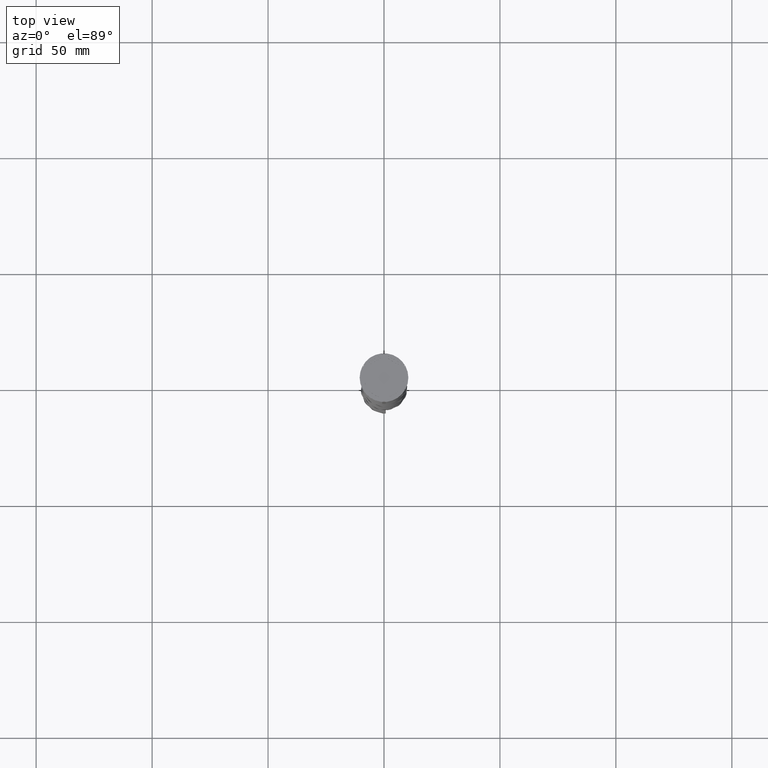
[diagram: clean part render]
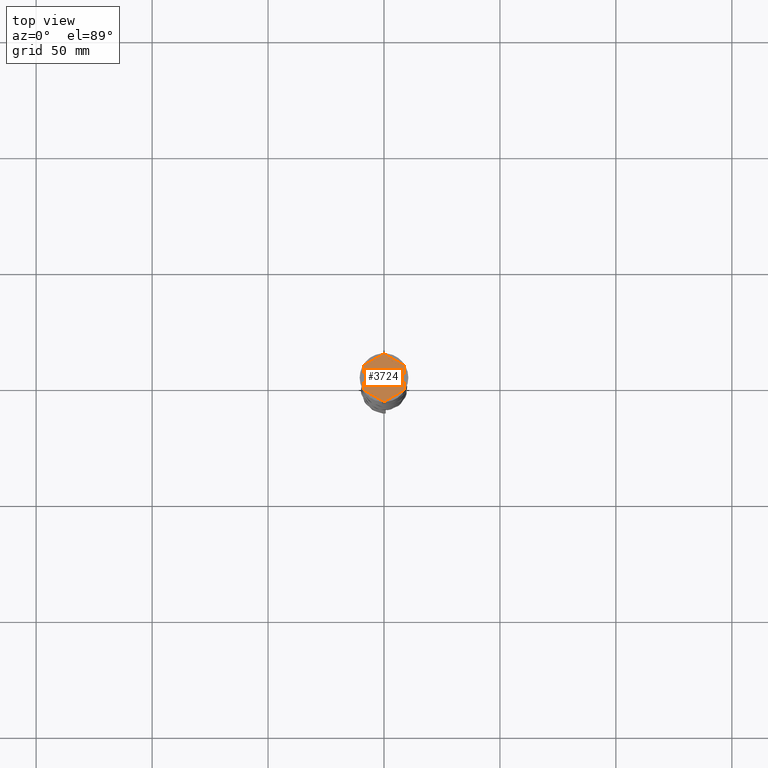
[diagram: same view with one face highlighted and labeled with its STEP entity id]
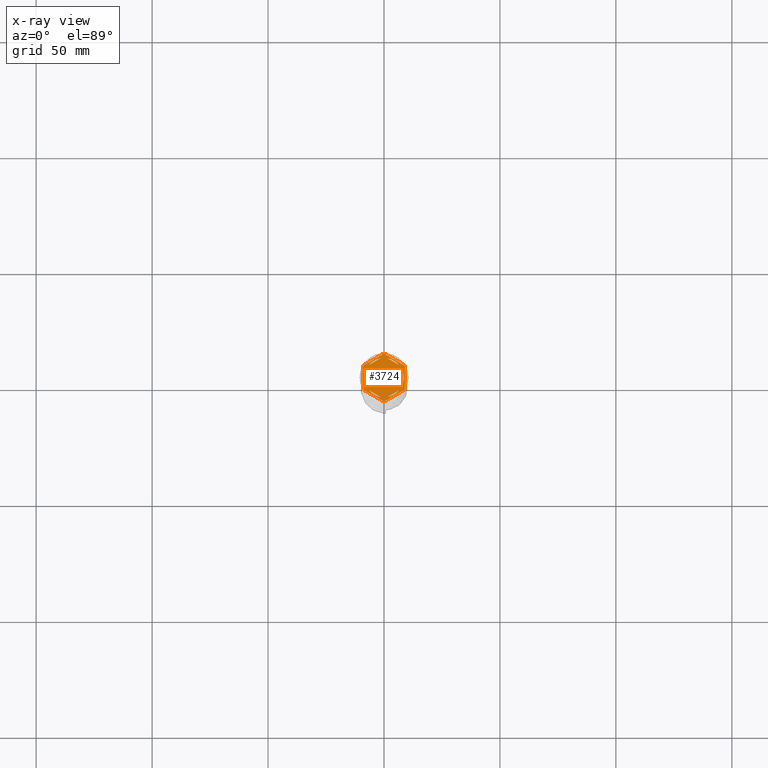
[diagram: x-ray of the same camera — body ghosted, the highlighted face saturated]
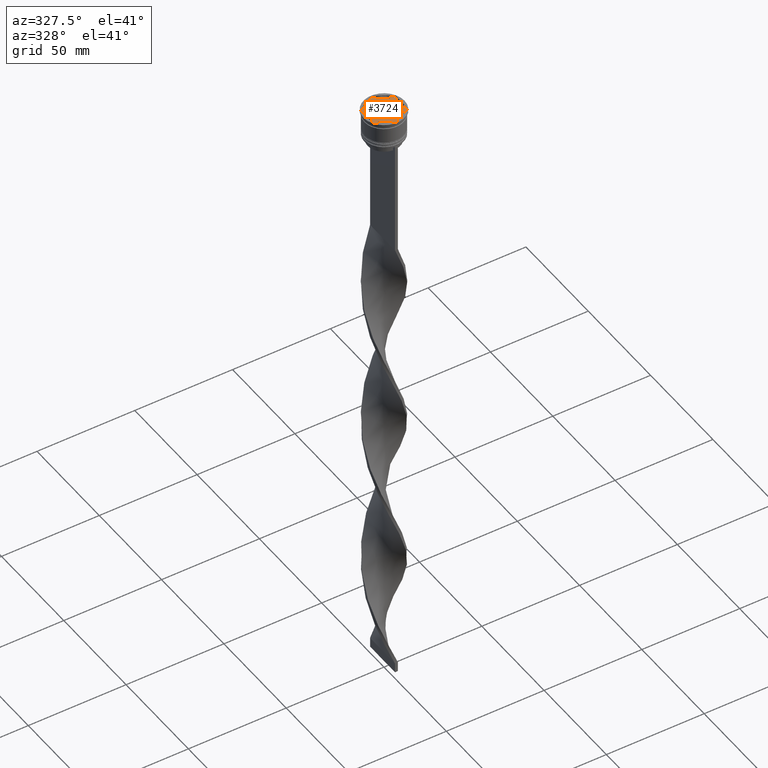
[diagram: same view with one face highlighted and labeled with its STEP entity id]
A machine part, top view. The second image highlights one B-rep face of the part: STEP entity #3724.
The next image is the same camera in x-ray: the body ghosted, the highlighted face saturated — about 0% of this face is hidden behind the body in this view.
A second angle (auxiliary view) of the same face is appended — the face is thin or edge-on in the first view.
In plain terms, the highlighted planar face has unit normal (0, 0, 1).
Its self-contained STEP definition (entity closure, byte-faithful):
#64 = DIRECTION ( 'NONE',  ( 0.000000000000000000, 1.000000000000000000, 0.000000000000000000 ) ) ;
#80 = EDGE_LOOP ( 'NONE', ( #1685, #1831 ) ) ;
#162 = VERTEX_POINT ( 'NONE', #2083 ) ;
#168 = CARTESIAN_POINT ( 'NONE',  ( 9.000000000000001776, 5.196152422706632912, -1.000000000000000000 ) ) ;
#185 = EDGE_CURVE ( 'NONE', #880, #2560, #531, .T. ) ;
#213 = DIRECTION ( 'NONE',  ( -0.000000000000000000, -0.000000000000000000, -1.000000000000000000 ) ) ;
#240 = CARTESIAN_POINT ( 'NONE',  ( 0.000000000000000000, 0.000000000000000000, -1.000000000000000000 ) ) ;
#246 = EDGE_CURVE ( 'NONE', #2197, #3687, #2754, .T. ) ;
#253 = CIRCLE ( 'NONE', #2899, 10.19999999999999574 ) ;
#262 = CARTESIAN_POINT ( 'NONE',  ( 0.000000000000000000, 0.000000000000000000, -1.000000000000000000 ) ) ;
#348 = LINE ( 'NONE', #3979, #1437 ) ;
#366 = CARTESIAN_POINT ( 'NONE',  ( 0.000000000000000000, 0.000000000000000000, -1.000000000000000000 ) ) ;
#390 = AXIS2_PLACEMENT_3D ( 'NONE', #3504, #3787, #3852 ) ;
#394 = DIRECTION ( 'NONE',  ( -0.000000000000000000, -0.000000000000000000, -1.000000000000000000 ) ) ;
#397 = DIRECTION ( 'NONE',  ( -0.8660254037844385966, 0.4999999999999999445, 0.000000000000000000 ) ) ;
#421 = ORIENTED_EDGE ( 'NONE', *, *, #2092, .F. ) ;
#457 = VERTEX_POINT ( 'NONE', #2256 ) ;
#488 = LINE ( 'NONE', #168, #4132 ) ;
#503 = DIRECTION ( 'NONE',  ( -0.000000000000000000, -0.000000000000000000, -1.000000000000000000 ) ) ;
#528 = DIRECTION ( 'NONE',  ( 0.000000000000000000, 0.000000000000000000, 1.000000000000000000 ) ) ;
#529 = CARTESIAN_POINT ( 'NONE',  ( -8.500000000000000000, 0.000000000000000000, -1.000000000000000000 ) ) ;
#531 = LINE ( 'NONE', #3197, #733 ) ;
#535 = ORIENTED_EDGE ( 'NONE', *, *, #2176, .F. ) ;
#574 = VERTEX_POINT ( 'NONE', #3417 ) ;
#593 = ORIENTED_EDGE ( 'NONE', *, *, #749, .F. ) ;
#598 = CARTESIAN_POINT ( 'NONE',  ( 8.673617379884035472E-16, 9.237604307034013473, -1.000000000000000888 ) ) ;
#610 = ORIENTED_EDGE ( 'NONE', *, *, #3267, .F. ) ;
#629 = DIRECTION ( 'NONE',  ( 0.8660254037844385966, -0.4999999999999999445, 0.000000000000000000 ) ) ;
#636 = DIRECTION ( 'NONE',  ( 1.000000000000000000, 0.000000000000000000, 0.000000000000000000 ) ) ;
#643 = LINE ( 'NONE', #598, #3448 ) ;
#665 = VECTOR ( 'NONE', #2409, 1000.000000000000000 ) ;
#676 = CIRCLE ( 'NONE', #3051, 8.500000000000000000 ) ;
#706 = ORIENTED_EDGE ( 'NONE', *, *, #2510, .T. ) ;
#733 = VECTOR ( 'NONE', #1539, 1000.000000000000000 ) ;
#746 = AXIS2_PLACEMENT_3D ( 'NONE', #4117, #213, #2498 ) ;
#749 = EDGE_CURVE ( 'NONE', #3033, #4163, #2063, .T. ) ;
#778 = DIRECTION ( 'NONE',  ( 0.000000000000000000, 1.000000000000000000, 0.000000000000000000 ) ) ;
#790 = ORIENTED_EDGE ( 'NONE', *, *, #1683, .F. ) ;
#807 = AXIS2_PLACEMENT_3D ( 'NONE', #366, #3013, #3653 ) ;
#826 = DIRECTION ( 'NONE',  ( 0.8660254037844387076, -0.4999999999999997224, 0.000000000000000000 ) ) ;
#830 = VERTEX_POINT ( 'NONE', #1817 ) ;
#836 = FACE_OUTER_BOUND ( 'NONE', #1695, .T. ) ;
#865 = AXIS2_PLACEMENT_3D ( 'NONE', #2751, #3062, #2735 ) ;
#880 = VERTEX_POINT ( 'NONE', #1495 ) ;
#906 = PLANE ( 'NONE',  #1724 ) ;
#991 = DIRECTION ( 'NONE',  ( 1.000000000000000000, 0.000000000000000000, 0.000000000000000000 ) ) ;
#1010 = DIRECTION ( 'NONE',  ( 0.000000000000000000, 0.000000000000000000, 1.000000000000000000 ) ) ;
#1023 = AXIS2_PLACEMENT_3D ( 'NONE', #2623, #3906, #3632 ) ;
#1068 = CARTESIAN_POINT ( 'NONE',  ( 2.607697573705103160E-15, -10.39230484541326405, -1.000000000000000000 ) ) ;
#1073 = ORIENTED_EDGE ( 'NONE', *, *, #246, .F. ) ;
#1076 = EDGE_CURVE ( 'NONE', #2954, #3488, #1929, .T. ) ;
#1112 = CARTESIAN_POINT ( 'NONE',  ( -8.673617379884035472E-16, -9.237604307034013473, -1.000000000000000888 ) ) ;
#1122 = ORIENTED_EDGE ( 'NONE', *, *, #2140, .F. ) ;
#1133 = CARTESIAN_POINT ( 'NONE',  ( 0.3430780618347059052, -10.19422863405994306, -1.000000000000000000 ) ) ;
#1157 = VERTEX_POINT ( 'NONE', #2301 ) ;
#1205 = CARTESIAN_POINT ( 'NONE',  ( 0.000000000000000000, 0.000000000000000000, -1.000000000000000000 ) ) ;
#1208 = DIRECTION ( 'NONE',  ( 0.000000000000000000, -1.000000000000000000, 0.000000000000000000 ) ) ;
#1213 = EDGE_CURVE ( 'NONE', #1827, #3189, #2629, .T. ) ;
#1225 = DIRECTION ( 'NONE',  ( -0.000000000000000000, -0.000000000000000000, -1.000000000000000000 ) ) ;
#1262 = DIRECTION ( 'NONE',  ( 0.000000000000000000, 0.000000000000000000, 1.000000000000000000 ) ) ;
#1331 = CARTESIAN_POINT ( 'NONE',  ( 8.656921938165297092, -5.394228634059953009, -1.000000000000000000 ) ) ;
#1390 = VERTEX_POINT ( 'NONE', #1331 ) ;
#1395 = CARTESIAN_POINT ( 'NONE',  ( 6.487468592766552078, 5.492062568641001619, -1.000000000000000888 ) ) ;
#1397 = EDGE_CURVE ( 'NONE', #3767, #574, #1517, .T. ) ;
#1420 = CARTESIAN_POINT ( 'NONE',  ( -1.512531407233448366, -8.364343891910017703, -1.000000000000000888 ) ) ;
#1437 = VECTOR ( 'NONE', #629, 1000.000000000000114 ) ;
#1494 = CIRCLE ( 'NONE', #3725, 8.500000000000000000 ) ;
#1495 = CARTESIAN_POINT ( 'NONE',  ( -0.3430780618347059052, 10.19422863405994306, -1.000000000000000000 ) ) ;
#1499 = DIRECTION ( 'NONE',  ( -0.8660254037844385966, 0.5000000000000000000, 0.000000000000000000 ) ) ;
#1503 = VERTEX_POINT ( 'NONE', #529 ) ;
#1517 = LINE ( 'NONE', #1112, #3247 ) ;
#1531 = CARTESIAN_POINT ( 'NONE',  ( -0.3430780618347024080, -10.19422863405994306, -1.000000000000000000 ) ) ;
#1539 = DIRECTION ( 'NONE',  ( -0.8660254037844385966, -0.5000000000000001110, 0.000000000000000000 ) ) ;
#1559 = FACE_BOUND ( 'NONE', #1675, .T. ) ;
#1586 = LINE ( 'NONE', #1983, #2135 ) ;
#1603 = ORIENTED_EDGE ( 'NONE', *, *, #2388, .F. ) ;
#1607 = CARTESIAN_POINT ( 'NONE',  ( -1.512531407233451475, 8.364343891910017703, -1.000000000000000888 ) ) ;
#1622 = CARTESIAN_POINT ( 'NONE',  ( 0.000000000000000000, 0.000000000000000000, -1.000000000000000000 ) ) ;
#1626 = EDGE_CURVE ( 'NONE', #4163, #3033, #676, .T. ) ;
#1638 = DIRECTION ( 'NONE',  ( 1.000000000000000000, 0.000000000000000000, 0.000000000000000000 ) ) ;
#1643 = AXIS2_PLACEMENT_3D ( 'NONE', #3379, #394, #3061 ) ;
#1644 = CARTESIAN_POINT ( 'NONE',  ( 0.000000000000000000, 0.000000000000000000, -1.000000000000000000 ) ) ;
#1660 = CIRCLE ( 'NONE', #1643, 10.19999999999999574 ) ;
#1668 = VERTEX_POINT ( 'NONE', #1709 ) ;
#1675 = EDGE_LOOP ( 'NONE', ( #2098, #593 ) ) ;
#1677 = DIRECTION ( 'NONE',  ( -1.877893248421449036E-16, -1.000000000000000000, 0.000000000000000000 ) ) ;
#1683 = EDGE_CURVE ( 'NONE', #3399, #3485, #2445, .T. ) ;
#1685 = ORIENTED_EDGE ( 'NONE', *, *, #1807, .F. ) ;
#1695 = EDGE_LOOP ( 'NONE', ( #2038, #3165, #3631, #1603, #4018, #2518, #706, #535, #1900, #2672, #2902, #2872 ) ) ;
#1709 = CARTESIAN_POINT ( 'NONE',  ( 8.000000000000000000, 2.872281323269014752, -1.000000000000000888 ) ) ;
#1720 = AXIS2_PLACEMENT_3D ( 'NONE', #240, #1225, #2241 ) ;
#1724 = AXIS2_PLACEMENT_3D ( 'NONE', #1205, #528, #3837 ) ;
#1795 = AXIS2_PLACEMENT_3D ( 'NONE', #262, #1262, #1638 ) ;
#1807 = EDGE_CURVE ( 'NONE', #162, #1668, #2146, .T. ) ;
#1817 = CARTESIAN_POINT ( 'NONE',  ( 9.000000000000001776, 4.799999999999988276, -1.000000000000000000 ) ) ;
#1820 = CARTESIAN_POINT ( 'NONE',  ( -8.000000000000000000, 2.872281323269016085, -1.000000000000000888 ) ) ;
#1827 = VERTEX_POINT ( 'NONE', #1133 ) ;
#1831 = ORIENTED_EDGE ( 'NONE', *, *, #2885, .F. ) ;
#1841 = EDGE_CURVE ( 'NONE', #4121, #830, #2010, .T. ) ;
#1852 = DIRECTION ( 'NONE',  ( 1.000000000000000000, 0.000000000000000000, 0.000000000000000000 ) ) ;
#1874 = EDGE_CURVE ( 'NONE', #3839, #3189, #4164, .T. ) ;
#1900 = ORIENTED_EDGE ( 'NONE', *, *, #1874, .T. ) ;
#1929 = CIRCLE ( 'NONE', #1023, 8.500000000000000000 ) ;
#1953 = EDGE_CURVE ( 'NONE', #4121, #2195, #488, .T. ) ;
#1983 = CARTESIAN_POINT ( 'NONE',  ( 7.999999999999998224, -4.618802153517008513, -1.000000000000000888 ) ) ;
#2001 = CARTESIAN_POINT ( 'NONE',  ( -8.000000000000000000, -2.872281323269016085, -1.000000000000000888 ) ) ;
#2010 = CIRCLE ( 'NONE', #746, 10.19999999999999574 ) ;
#2038 = ORIENTED_EDGE ( 'NONE', *, *, #3130, .T. ) ;
#2063 = LINE ( 'NONE', #4042, #3508 ) ;
#2076 = VECTOR ( 'NONE', #826, 1000.000000000000114 ) ;
#2083 = CARTESIAN_POINT ( 'NONE',  ( 8.000000000000000000, -2.872281323269017417, -1.000000000000000888 ) ) ;
#2092 = EDGE_CURVE ( 'NONE', #3687, #2197, #348, .T. ) ;
#2098 = ORIENTED_EDGE ( 'NONE', *, *, #1626, .F. ) ;
#2135 = VECTOR ( 'NONE', #1677, 1000.000000000000000 ) ;
#2140 = EDGE_CURVE ( 'NONE', #1503, #3399, #2557, .T. ) ;
#2146 = CIRCLE ( 'NONE', #3730, 8.500000000000000000 ) ;
#2176 = EDGE_CURVE ( 'NONE', #3839, #2592, #253, .T. ) ;
#2195 = VERTEX_POINT ( 'NONE', #3742 ) ;
#2197 = VERTEX_POINT ( 'NONE', #1395 ) ;
#2241 = DIRECTION ( 'NONE',  ( 1.000000000000000000, 8.881784197001252323E-16, 0.000000000000000000 ) ) ;
#2256 = CARTESIAN_POINT ( 'NONE',  ( 9.000000000000001776, -4.799999999999988276, -1.000000000000000000 ) ) ;
#2301 = CARTESIAN_POINT ( 'NONE',  ( -9.000000000000001776, 4.799999999999988276, -1.000000000000000000 ) ) ;
#2312 = DIRECTION ( 'NONE',  ( 0.000000000000000000, 0.000000000000000000, 1.000000000000000000 ) ) ;
#2388 = EDGE_CURVE ( 'NONE', #880, #2195, #1660, .T. ) ;
#2405 = EDGE_CURVE ( 'NONE', #1827, #1390, #2734, .T. ) ;
#2409 = DIRECTION ( 'NONE',  ( 0.8660254037844385966, 0.5000000000000001110, 0.000000000000000000 ) ) ;
#2431 = AXIS2_PLACEMENT_3D ( 'NONE', #3803, #503, #1852 ) ;
#2445 = LINE ( 'NONE', #3829, #4129 ) ;
#2498 = DIRECTION ( 'NONE',  ( 1.000000000000000000, 0.000000000000000000, 0.000000000000000000 ) ) ;
#2510 = EDGE_CURVE ( 'NONE', #1157, #2592, #4181, .T. ) ;
#2513 = EDGE_CURVE ( 'NONE', #1157, #2560, #3866, .T. ) ;
#2518 = ORIENTED_EDGE ( 'NONE', *, *, #2513, .F. ) ;
#2526 = FACE_BOUND ( 'NONE', #80, .T. ) ;
#2527 = DIRECTION ( 'NONE',  ( -0.8660254037844387076, -0.4999999999999998335, 0.000000000000000000 ) ) ;
#2557 = CIRCLE ( 'NONE', #1795, 8.500000000000000000 ) ;
#2560 = VERTEX_POINT ( 'NONE', #2614 ) ;
#2592 = VERTEX_POINT ( 'NONE', #2958 ) ;
#2614 = CARTESIAN_POINT ( 'NONE',  ( -8.656921938165297092, 5.394228634059953009, -1.000000000000000000 ) ) ;
#2623 = CARTESIAN_POINT ( 'NONE',  ( 0.000000000000000000, 0.000000000000000000, -1.000000000000000000 ) ) ;
#2629 = CIRCLE ( 'NONE', #807, 10.19999999999999574 ) ;
#2652 = ORIENTED_EDGE ( 'NONE', *, *, #3887, .F. ) ;
#2667 = DIRECTION ( 'NONE',  ( 0.8660254037844384856, 0.5000000000000003331, -0.000000000000000000 ) ) ;
#2672 = ORIENTED_EDGE ( 'NONE', *, *, #1213, .F. ) ;
#2676 = EDGE_LOOP ( 'NONE', ( #2884, #2652 ) ) ;
#2734 = LINE ( 'NONE', #1068, #665 ) ;
#2735 = DIRECTION ( 'NONE',  ( 1.000000000000000000, 0.000000000000000000, 0.000000000000000000 ) ) ;
#2751 = CARTESIAN_POINT ( 'NONE',  ( 0.000000000000000000, 0.000000000000000000, -1.000000000000000000 ) ) ;
#2754 = CIRCLE ( 'NONE', #865, 8.500000000000000000 ) ;
#2766 = CARTESIAN_POINT ( 'NONE',  ( -6.487468592766552078, -5.492062568641001619, -1.000000000000000888 ) ) ;
#2861 = ORIENTED_EDGE ( 'NONE', *, *, #3398, .F. ) ;
#2866 = CARTESIAN_POINT ( 'NONE',  ( 1.512531407233448366, 8.364343891910017703, -1.000000000000000888 ) ) ;
#2872 = ORIENTED_EDGE ( 'NONE', *, *, #3355, .F. ) ;
#2884 = ORIENTED_EDGE ( 'NONE', *, *, #1076, .F. ) ;
#2885 = EDGE_CURVE ( 'NONE', #1668, #162, #1586, .T. ) ;
#2893 = CIRCLE ( 'NONE', #390, 8.500000000000000000 ) ;
#2899 = AXIS2_PLACEMENT_3D ( 'NONE', #3591, #2945, #4257 ) ;
#2902 = ORIENTED_EDGE ( 'NONE', *, *, #2405, .T. ) ;
#2945 = DIRECTION ( 'NONE',  ( -0.000000000000000000, -0.000000000000000000, -1.000000000000000000 ) ) ;
#2954 = VERTEX_POINT ( 'NONE', #1607 ) ;
#2958 = CARTESIAN_POINT ( 'NONE',  ( -9.000000000000001776, -4.799999999999988276, -1.000000000000000000 ) ) ;
#3013 = DIRECTION ( 'NONE',  ( -0.000000000000000000, -0.000000000000000000, -1.000000000000000000 ) ) ;
#3033 = VERTEX_POINT ( 'NONE', #1420 ) ;
#3051 = AXIS2_PLACEMENT_3D ( 'NONE', #3982, #1010, #3663 ) ;
#3052 = CARTESIAN_POINT ( 'NONE',  ( 9.000000000000001776, -5.196152422706632024, -1.000000000000000000 ) ) ;
#3061 = DIRECTION ( 'NONE',  ( 1.000000000000000000, 1.598721155460225418E-14, 0.000000000000000000 ) ) ;
#3062 = DIRECTION ( 'NONE',  ( 0.000000000000000000, 0.000000000000000000, 1.000000000000000000 ) ) ;
#3130 = EDGE_CURVE ( 'NONE', #457, #830, #3367, .T. ) ;
#3157 = CARTESIAN_POINT ( 'NONE',  ( -6.487468592766553854, 5.492062568640999842, -1.000000000000000888 ) ) ;
#3165 = ORIENTED_EDGE ( 'NONE', *, *, #1841, .F. ) ;
#3167 = VECTOR ( 'NONE', #64, 1000.000000000000000 ) ;
#3177 = VECTOR ( 'NONE', #1208, 1000.000000000000000 ) ;
#3189 = VERTEX_POINT ( 'NONE', #1531 ) ;
#3197 = CARTESIAN_POINT ( 'NONE',  ( 0.000000000000000000, 10.39230484541326582, -1.000000000000000000 ) ) ;
#3207 = ORIENTED_EDGE ( 'NONE', *, *, #1397, .F. ) ;
#3224 = EDGE_LOOP ( 'NONE', ( #610, #790, #1122 ) ) ;
#3247 = VECTOR ( 'NONE', #2527, 1000.000000000000114 ) ;
#3267 = EDGE_CURVE ( 'NONE', #3485, #1503, #2893, .T. ) ;
#3278 = DIRECTION ( 'NONE',  ( 0.000000000000000000, 0.000000000000000000, 1.000000000000000000 ) ) ;
#3355 = EDGE_CURVE ( 'NONE', #457, #1390, #3998, .T. ) ;
#3367 = LINE ( 'NONE', #3052, #3167 ) ;
#3379 = CARTESIAN_POINT ( 'NONE',  ( 0.000000000000000000, 0.000000000000000000, -1.000000000000000000 ) ) ;
#3398 = EDGE_CURVE ( 'NONE', #574, #3767, #1494, .T. ) ;
#3399 = VERTEX_POINT ( 'NONE', #2001 ) ;
#3417 = CARTESIAN_POINT ( 'NONE',  ( 1.512531407233452363, -8.364343891910017703, -1.000000000000000888 ) ) ;
#3448 = VECTOR ( 'NONE', #2667, 1000.000000000000114 ) ;
#3485 = VERTEX_POINT ( 'NONE', #1820 ) ;
#3488 = VERTEX_POINT ( 'NONE', #3157 ) ;
#3504 = CARTESIAN_POINT ( 'NONE',  ( 0.000000000000000000, 0.000000000000000000, -1.000000000000000000 ) ) ;
#3508 = VECTOR ( 'NONE', #397, 1000.000000000000114 ) ;
#3539 = FACE_BOUND ( 'NONE', #2676, .T. ) ;
#3557 = CARTESIAN_POINT ( 'NONE',  ( 6.487468592766547637, -5.492062568641006060, -1.000000000000000888 ) ) ;
#3591 = CARTESIAN_POINT ( 'NONE',  ( 0.000000000000000000, 0.000000000000000000, -1.000000000000000000 ) ) ;
#3627 = CARTESIAN_POINT ( 'NONE',  ( -8.656921938165295316, -5.394228634059957450, -1.000000000000000000 ) ) ;
#3631 = ORIENTED_EDGE ( 'NONE', *, *, #1953, .T. ) ;
#3632 = DIRECTION ( 'NONE',  ( 1.000000000000000000, 0.000000000000000000, 0.000000000000000000 ) ) ;
#3653 = DIRECTION ( 'NONE',  ( 1.000000000000000000, 0.000000000000000000, 0.000000000000000000 ) ) ;
#3663 = DIRECTION ( 'NONE',  ( 1.000000000000000000, 0.000000000000000000, 0.000000000000000000 ) ) ;
#3687 = VERTEX_POINT ( 'NONE', #2866 ) ;
#3724 = ADVANCED_FACE ( 'NONE', ( #4155, #2526, #3817, #1559, #3880, #3539, #836 ), #906, .T. ) ;
#3725 = AXIS2_PLACEMENT_3D ( 'NONE', #1622, #2312, #636 ) ;
#3730 = AXIS2_PLACEMENT_3D ( 'NONE', #1644, #3278, #991 ) ;
#3742 = CARTESIAN_POINT ( 'NONE',  ( 0.3430780618347050170, 10.19422863405994306, -1.000000000000000000 ) ) ;
#3767 = VERTEX_POINT ( 'NONE', #3557 ) ;
#3787 = DIRECTION ( 'NONE',  ( 0.000000000000000000, 0.000000000000000000, 1.000000000000000000 ) ) ;
#3803 = CARTESIAN_POINT ( 'NONE',  ( 0.000000000000000000, 0.000000000000000000, -1.000000000000000000 ) ) ;
#3806 = CARTESIAN_POINT ( 'NONE',  ( -9.000000000000001776, -5.196152422706632912, -1.000000000000000000 ) ) ;
#3817 = FACE_BOUND ( 'NONE', #3967, .T. ) ;
#3820 = CARTESIAN_POINT ( 'NONE',  ( -9.000000000000001776, 5.196152422706632024, -1.000000000000000000 ) ) ;
#3829 = CARTESIAN_POINT ( 'NONE',  ( -8.000000000000000000, 4.618802153517004072, -1.000000000000000888 ) ) ;
#3837 = DIRECTION ( 'NONE',  ( 1.000000000000000000, 0.000000000000000000, -0.000000000000000000 ) ) ;
#3839 = VERTEX_POINT ( 'NONE', #3627 ) ;
#3852 = DIRECTION ( 'NONE',  ( 1.000000000000000000, 0.000000000000000000, 0.000000000000000000 ) ) ;
#3866 = CIRCLE ( 'NONE', #2431, 10.19999999999999574 ) ;
#3880 = FACE_BOUND ( 'NONE', #3224, .T. ) ;
#3887 = EDGE_CURVE ( 'NONE', #3488, #2954, #643, .T. ) ;
#3906 = DIRECTION ( 'NONE',  ( 0.000000000000000000, 0.000000000000000000, 1.000000000000000000 ) ) ;
#3967 = EDGE_LOOP ( 'NONE', ( #2861, #3207 ) ) ;
#3979 = CARTESIAN_POINT ( 'NONE',  ( 8.000000000000000000, 4.618802153517006737, -1.000000000000000888 ) ) ;
#3982 = CARTESIAN_POINT ( 'NONE',  ( 0.000000000000000000, 0.000000000000000000, -1.000000000000000000 ) ) ;
#3989 = EDGE_LOOP ( 'NONE', ( #1073, #421 ) ) ;
#3998 = CIRCLE ( 'NONE', #1720, 10.19999999999999574 ) ;
#4018 = ORIENTED_EDGE ( 'NONE', *, *, #185, .T. ) ;
#4031 = CARTESIAN_POINT ( 'NONE',  ( 8.656921938165297092, 5.394228634059953897, -1.000000000000000000 ) ) ;
#4042 = CARTESIAN_POINT ( 'NONE',  ( -8.000000000000000000, -4.618802153517006737, -1.000000000000000888 ) ) ;
#4117 = CARTESIAN_POINT ( 'NONE',  ( 0.000000000000000000, 0.000000000000000000, -1.000000000000000000 ) ) ;
#4121 = VERTEX_POINT ( 'NONE', #4031 ) ;
#4129 = VECTOR ( 'NONE', #778, 1000.000000000000000 ) ;
#4132 = VECTOR ( 'NONE', #1499, 1000.000000000000227 ) ;
#4155 = FACE_BOUND ( 'NONE', #3989, .T. ) ;
#4163 = VERTEX_POINT ( 'NONE', #2766 ) ;
#4164 = LINE ( 'NONE', #3806, #2076 ) ;
#4181 = LINE ( 'NONE', #3820, #3177 ) ;
#4257 = DIRECTION ( 'NONE',  ( 1.000000000000000000, 0.000000000000000000, 0.000000000000000000 ) ) ;